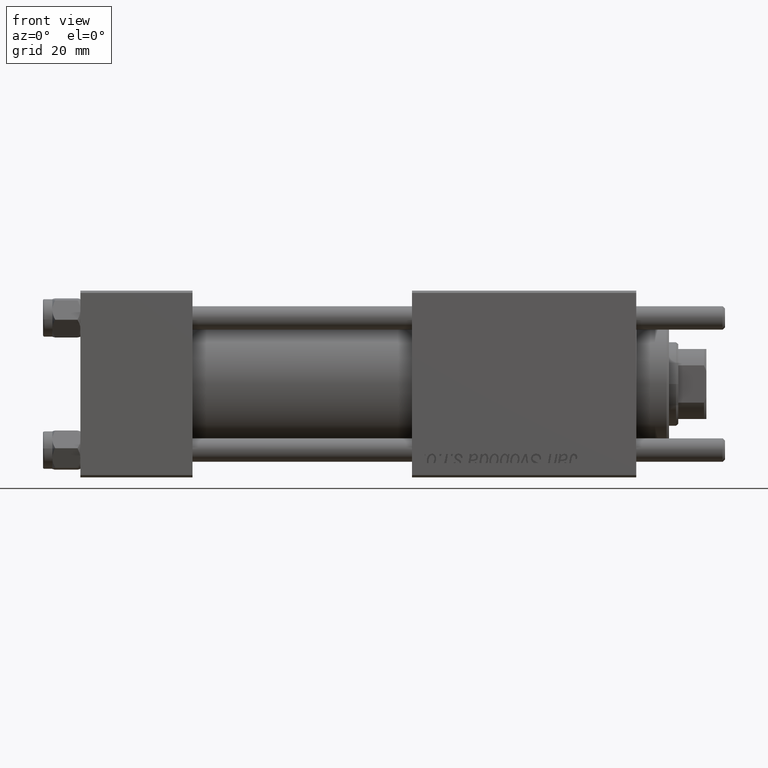
[diagram: clean part render]
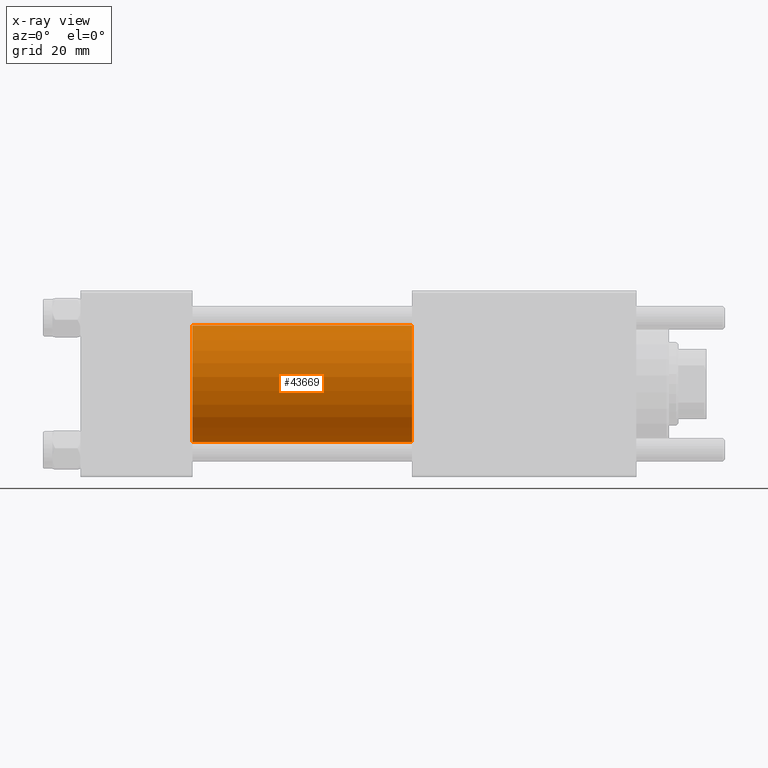
[diagram: x-ray — body ghosted, one internal face saturated and labeled with its STEP entity id]
A machine part, front view, then the same camera in x-ray: the body is ghosted and one INTERNAL B-rep face — a face not visible from any outside direction — is saturated and labeled: STEP entity #43669.
In plain terms, the highlighted cylindrical surface (partial cylindrical patch) has radius 12.5 mm, axis along (-1, -0, -0).
Its self-contained STEP definition (entity closure, byte-faithful):
#1063 = DIRECTION ( 'NONE',  ( 0.000000000000000000, 0.000000000000000000, 1.000000000000000000 ) ) ;
#3571 = CIRCLE ( 'NONE', #52118, 12.49999999999999645 ) ;
#5763 = DIRECTION ( 'NONE',  ( 1.000000000000000000, 0.000000000000000000, 0.000000000000000000 ) ) ;
#7736 = CARTESIAN_POINT ( 'NONE',  ( 71.00000000000001421, -2.602085213965210642E-15, 12.49999999999999645 ) ) ;
#7876 = LINE ( 'NONE', #33981, #30654 ) ;
#7983 = VERTEX_POINT ( 'NONE', #32239 ) ;
#8630 = ORIENTED_EDGE ( 'NONE', *, *, #19302, .F. ) ;
#9729 = EDGE_CURVE ( 'NONE', #37388, #23432, #7876, .T. ) ;
#9948 = CARTESIAN_POINT ( 'NONE',  ( 71.00000000000001421, -2.602085213965210642E-15, 0.000000000000000000 ) ) ;
#10295 = AXIS2_PLACEMENT_3D ( 'NONE', #9948, #31456, #1063 ) ;
#10840 = CARTESIAN_POINT ( 'NONE',  ( 24.00000000000000000, -1.071276715031019515E-15, -12.49999999999999645 ) ) ;
#12048 = CIRCLE ( 'NONE', #27605, 12.49999999999999645 ) ;
#16740 = LINE ( 'NONE', #51137, #52744 ) ;
#17938 = EDGE_LOOP ( 'NONE', ( #18989, #18343, #42020, #8630 ) ) ;
#18343 = ORIENTED_EDGE ( 'NONE', *, *, #9729, .T. ) ;
#18989 = ORIENTED_EDGE ( 'NONE', *, *, #33945, .T. ) ;
#19302 = EDGE_CURVE ( 'NONE', #31632, #7983, #16740, .T. ) ;
#23432 = VERTEX_POINT ( 'NONE', #10840 ) ;
#24760 = CARTESIAN_POINT ( 'NONE',  ( 71.00000000000001421, -1.071276715031019515E-15, -12.49999999999999645 ) ) ;
#27605 = AXIS2_PLACEMENT_3D ( 'NONE', #31733, #44915, #43790 ) ;
#30654 = VECTOR ( 'NONE', #42016, 1000.000000000000000 ) ;
#31456 = DIRECTION ( 'NONE',  ( -1.000000000000000000, -0.000000000000000000, -0.000000000000000000 ) ) ;
#31632 = VERTEX_POINT ( 'NONE', #7736 ) ;
#31733 = CARTESIAN_POINT ( 'NONE',  ( 24.00000000000000000, -2.602085213965210642E-15, 0.000000000000000000 ) ) ;
#32239 = CARTESIAN_POINT ( 'NONE',  ( 24.00000000000000000, -2.602085213965210642E-15, 12.49999999999999645 ) ) ;
#33945 = EDGE_CURVE ( 'NONE', #31632, #37388, #3571, .T. ) ;
#33981 = CARTESIAN_POINT ( 'NONE',  ( 71.00000000000001421, -1.071276715031019515E-15, -12.49999999999999645 ) ) ;
#35758 = CYLINDRICAL_SURFACE ( 'NONE', #10295, 12.49999999999999645 ) ;
#35871 = DIRECTION ( 'NONE',  ( 0.000000000000000000, 0.000000000000000000, -1.000000000000000000 ) ) ;
#37388 = VERTEX_POINT ( 'NONE', #24760 ) ;
#40474 = EDGE_CURVE ( 'NONE', #7983, #23432, #12048, .T. ) ;
#41019 = CARTESIAN_POINT ( 'NONE',  ( 71.00000000000001421, -2.602085213965210642E-15, 0.000000000000000000 ) ) ;
#42016 = DIRECTION ( 'NONE',  ( -1.000000000000000000, -0.000000000000000000, -0.000000000000000000 ) ) ;
#42020 = ORIENTED_EDGE ( 'NONE', *, *, #40474, .F. ) ;
#43669 = ADVANCED_FACE ( 'NONE', ( #43793 ), #35758, .F. ) ;
#43790 = DIRECTION ( 'NONE',  ( 0.000000000000000000, 0.000000000000000000, -1.000000000000000000 ) ) ;
#43793 = FACE_OUTER_BOUND ( 'NONE', #17938, .T. ) ;
#44915 = DIRECTION ( 'NONE',  ( 1.000000000000000000, 0.000000000000000000, 0.000000000000000000 ) ) ;
#51137 = CARTESIAN_POINT ( 'NONE',  ( 71.00000000000001421, -2.602085213965210642E-15, 12.49999999999999645 ) ) ;
#52118 = AXIS2_PLACEMENT_3D ( 'NONE', #41019, #5763, #35871 ) ;
#52744 = VECTOR ( 'NONE', #55440, 1000.000000000000000 ) ;
#55440 = DIRECTION ( 'NONE',  ( -1.000000000000000000, -0.000000000000000000, -0.000000000000000000 ) ) ;